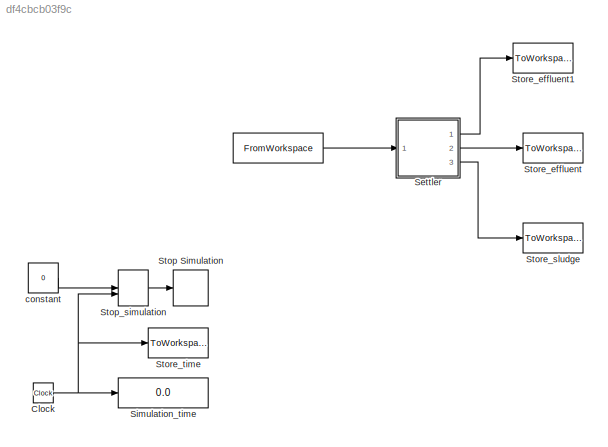
MODEL slx_df4cbcb03f9c
KIND model
BLOCK [FromWorkspace]  
  OutputAfterFinalValue = Holding final value
  VariableName = Influent_settler
BLOCK [Constant]  constant
  Value = 0
BLOCK [Clock] Clock
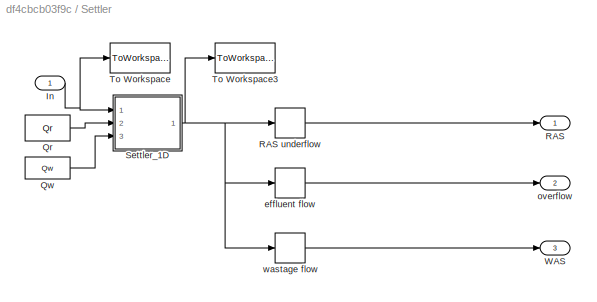
BLOCK [SubSystem] Settler
  FunctionWithSeparateData = off
  MaskHideContents = off
  MinAlgLoopOccurrences = off
  Opaque = off
  Ports = [1, 3]
  PropExecContextOutsideSubsystem = off
  RTWSystemCode = Auto
  RequestExecContextInheritance = off
BLOCK [Inport] Settler/In
  IconDisplay = Port number
BLOCK [Constant] Settler/Qr
  Value = Qr
BLOCK [Constant] Settler/Qw
  Value = Qw
BLOCK [Outport] Settler/RAS
  IconDisplay = Port number
BLOCK [Selector] Settler/RAS underflow
  IndexOptions = Index vector (dialog)
  Indices = [1:26]
  InputPortWidth = 215
  OutputSizes = 1
  Ports = [1, 1]
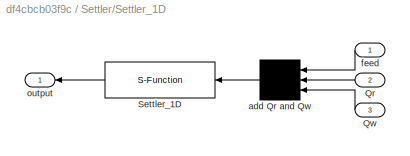
BLOCK [SubSystem] Settler/Settler_1D
  FunctionWithSeparateData = off
  MaskHideContents = off
  MinAlgLoopOccurrences = off
  Opaque = off
  Ports = [3, 1]
  PropExecContextOutsideSubsystem = off
  RTWSystemCode = Auto
  RequestExecContextInheritance = off
BLOCK [Inport] Settler/Settler_1D/Qr
  IconDisplay = Port number
  Port = 2
BLOCK [Inport] Settler/Settler_1D/Qw
  IconDisplay = Port number
  Port = 3
BLOCK [S-Function] Settler/Settler_1D/Settler_1D
  EnableBusSupport = off
  FunctionName = settler1dv4_4_UJ
  Parameters = SETTLERINIT,SETTLERPAR,DIM,LAYER,TEMPMODEL, MODELTYPE
  Ports = [1, 1]
BLOCK [Mux] Settler/Settler_1D/add Qr and Qw
  Inputs = 3
  Ports = [3, 1]
BLOCK [Inport] Settler/Settler_1D/feed
  IconDisplay = Port number
BLOCK [Outport] Settler/Settler_1D/output
  IconDisplay = Port number
BLOCK [ToWorkspace] Settler/To Workspace
  MaxDataPoints = inf
  Ports = [1]
  VariableName = feed
BLOCK [ToWorkspace] Settler/To Workspace3
  MaxDataPoints = inf
  Ports = [1]
  VariableName = settler
BLOCK [Outport] Settler/WAS
  IconDisplay = Port number
  Port = 3
BLOCK [Selector] Settler/effluent flow
  IndexOptions = Index vector (dialog)
  Indices = [28:53]
  InputPortWidth = 215
  OutputSizes = 1
  Ports = [1, 1]
BLOCK [Outport] Settler/overflow
  IconDisplay = Port number
  Port = 2
BLOCK [Selector] Settler/wastage flow
  IndexOptions = Index vector (dialog)
  Indices = [1:14, 27, 16:26]
  InputPortWidth = 215
  OutputSizes = 1
  Ports = [1, 1]
BLOCK [Display] Simulation_time
  Decimation = 1
  Lockdown = off
  Ports = [1]
BLOCK [Stop] Stop Simulation
BLOCK [ManualSwitch] Stop_simulation
BLOCK [ToWorkspace] Store_effluent
  MaxDataPoints = inf
  Ports = [1]
  VariableName = effluent
BLOCK [ToWorkspace] Store_effluent1
  MaxDataPoints = inf
  Ports = [1]
  VariableName = effluent1
BLOCK [ToWorkspace] Store_sludge
  MaxDataPoints = inf
  Ports = [1]
  VariableName = sludge
BLOCK [ToWorkspace] Store_time
  MaxDataPoints = inf
  Ports = [1]
  VariableName = time
LINE  :1 -> Settler:1
LINE  constant:1 -> Stop_simulation:1
NET Clock:1 -> Simulation_time:1, Stop_simulation:2, Store_time:1
NET Settler/In:1 -> Settler/Settler_1D:1, Settler/To Workspace:1
LINE Settler/Qr:1 -> Settler/Settler_1D:2
LINE Settler/Qw:1 -> Settler/Settler_1D:3
LINE Settler/RAS underflow:1 -> Settler/RAS:1
LINE Settler/Settler_1D/Qr:1 -> Settler/Settler_1D/add Qr and Qw:2
LINE Settler/Settler_1D/Qw:1 -> Settler/Settler_1D/add Qr and Qw:3
LINE Settler/Settler_1D/Settler_1D:1 -> Settler/Settler_1D/output:1
LINE Settler/Settler_1D/add Qr and Qw:1 -> Settler/Settler_1D/Settler_1D:1
LINE Settler/Settler_1D/feed:1 -> Settler/Settler_1D/add Qr and Qw:1
NET Settler/Settler_1D:1 -> Settler/RAS underflow:1, Settler/To Workspace3:1, Settler/effluent flow:1, Settler/wastage flow:1
LINE Settler/effluent flow:1 -> Settler/overflow:1
LINE Settler/wastage flow:1 -> Settler/WAS:1
LINE Settler:1 -> Store_effluent1:1
LINE Settler:2 -> Store_effluent:1
LINE Settler:3 -> Store_sludge:1
LINE Stop_simulation:1 -> Stop Simulation:1
note: NET lines group one-source signal fan-out (src -> all destinations, sorted); 1:1 wires keep LINE
